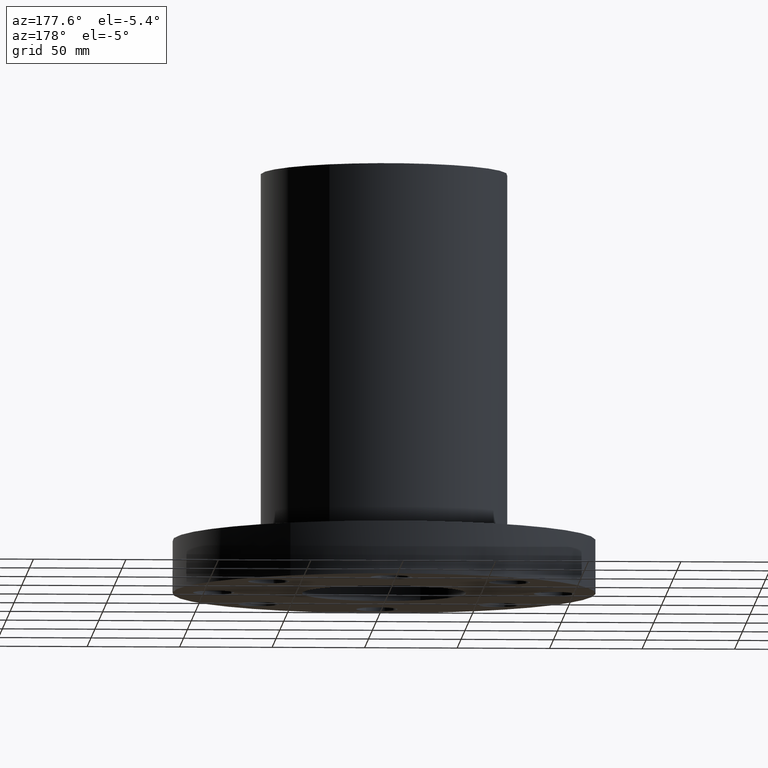
[diagram: clean part render]
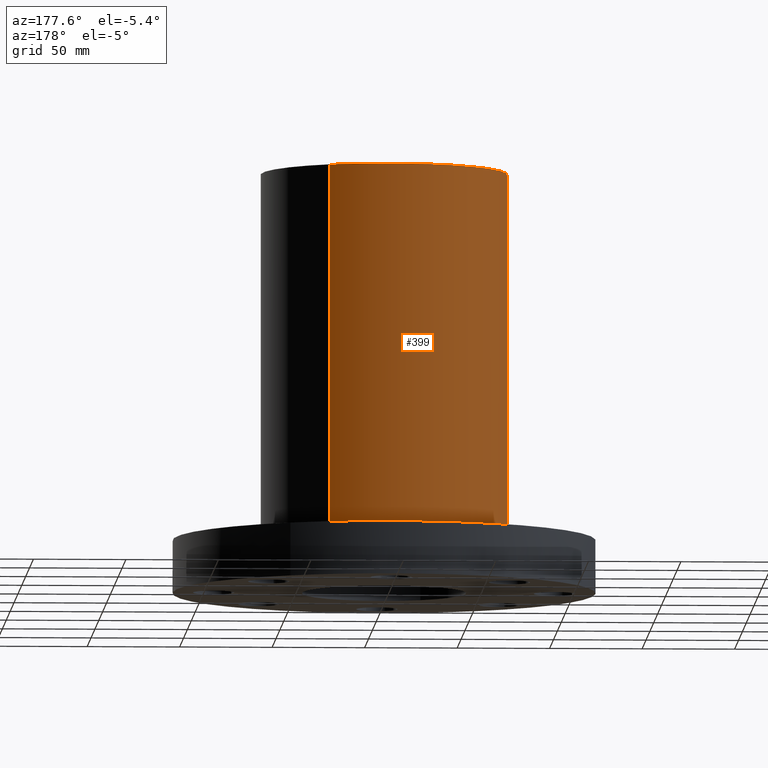
[diagram: same view with one face highlighted and labeled with its STEP entity id]
A machine part, auxiliary view. The second image highlights one B-rep face of the part: STEP entity #399.
In plain terms, the highlighted cylindrical surface (partial cylindrical patch) has radius 66.675 mm, axis along (0, 0, -1).
Its self-contained STEP definition (entity closure, byte-faithful):
#121=AXIS2_PLACEMENT_3D('Circle Axis2P3D',#119,#120,$) ;
#360=AXIS2_PLACEMENT_3D('Cylinder Axis2P3D',#357,#358,#359) ;
#390=AXIS2_PLACEMENT_3D('Circle Axis2P3D',#388,#389,$) ;
#119=CARTESIAN_POINT('Axis2P3D Location',(0.,0.,1.1275)) ;
#123=CARTESIAN_POINT('Vertex',(-1.25849203884,-2.30365422497,1.1275)) ;
#125=CARTESIAN_POINT('Vertex',(1.25849203884,2.30365422497,1.1275)) ;
#357=CARTESIAN_POINT('Axis2P3D Location',(0.,0.,4.43750000002)) ;
#362=CARTESIAN_POINT('Line Origine',(1.25849203884,2.30365422497,5.03250000002)) ;
#366=CARTESIAN_POINT('Vertex',(1.25849203884,2.30365422497,8.93750000004)) ;
#373=CARTESIAN_POINT('Vertex',(-1.25849203884,-2.30365422497,8.93750000004)) ;
#376=CARTESIAN_POINT('Line Origine',(-1.25849203884,-2.30365422497,5.03250000002)) ;
#388=CARTESIAN_POINT('Axis2P3D Location',(0.,0.,8.93750000004)) ;
#120=DIRECTION('Axis2P3D Direction',(0.,0.,-0.0393700787402)) ;
#358=DIRECTION('Axis2P3D Direction',(0.,0.,-0.0393700787402)) ;
#359=DIRECTION('Axis2P3D XDirection',(-0.0188750212049,-0.0345504945626,0.)) ;
#363=DIRECTION('Vector Direction',(0.,0.,-0.0393700787402)) ;
#377=DIRECTION('Vector Direction',(0.,0.,-0.0393700787402)) ;
#389=DIRECTION('Axis2P3D Direction',(0.,0.,-0.0393700787402)) ;
#364=VECTOR('Line Direction',#363,0.0393700787402) ;
#378=VECTOR('Line Direction',#377,0.0393700787402) ;
#394=ORIENTED_EDGE('',*,*,#127,.F.) ;
#395=ORIENTED_EDGE('',*,*,#380,.T.) ;
#396=ORIENTED_EDGE('',*,*,#392,.T.) ;
#397=ORIENTED_EDGE('',*,*,#368,.F.) ;
#399=ADVANCED_FACE('PartBody',(#398),#361,.T.) ;
#122=CIRCLE('generated circle',#121,2.62500000001) ;
#391=CIRCLE('generated circle',#390,2.62500000001) ;
#361=CYLINDRICAL_SURFACE('generated cylinder',#360,2.62500000001) ;
#127=EDGE_CURVE('',#124,#126,#122,.T.) ;
#368=EDGE_CURVE('',#126,#367,#365,.F.) ;
#380=EDGE_CURVE('',#124,#374,#379,.F.) ;
#392=EDGE_CURVE('',#374,#367,#391,.T.) ;
#393=EDGE_LOOP('',(#394,#395,#396,#397)) ;
#398=FACE_OUTER_BOUND('',#393,.T.) ;
#365=LINE('Line',#362,#364) ;
#379=LINE('Line',#376,#378) ;
#124=VERTEX_POINT('',#123) ;
#126=VERTEX_POINT('',#125) ;
#367=VERTEX_POINT('',#366) ;
#374=VERTEX_POINT('',#373) ;